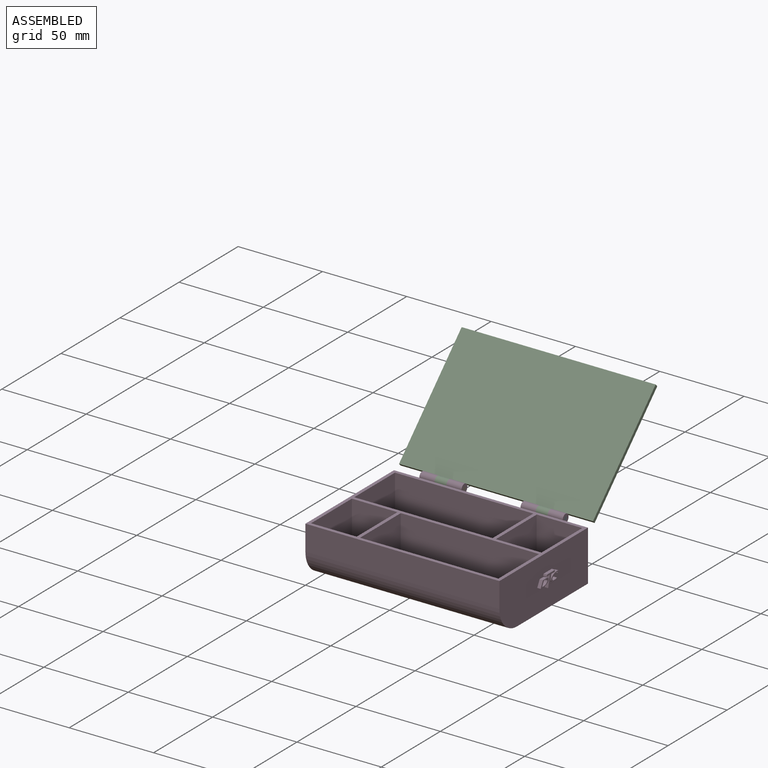
[diagram: assembled view]
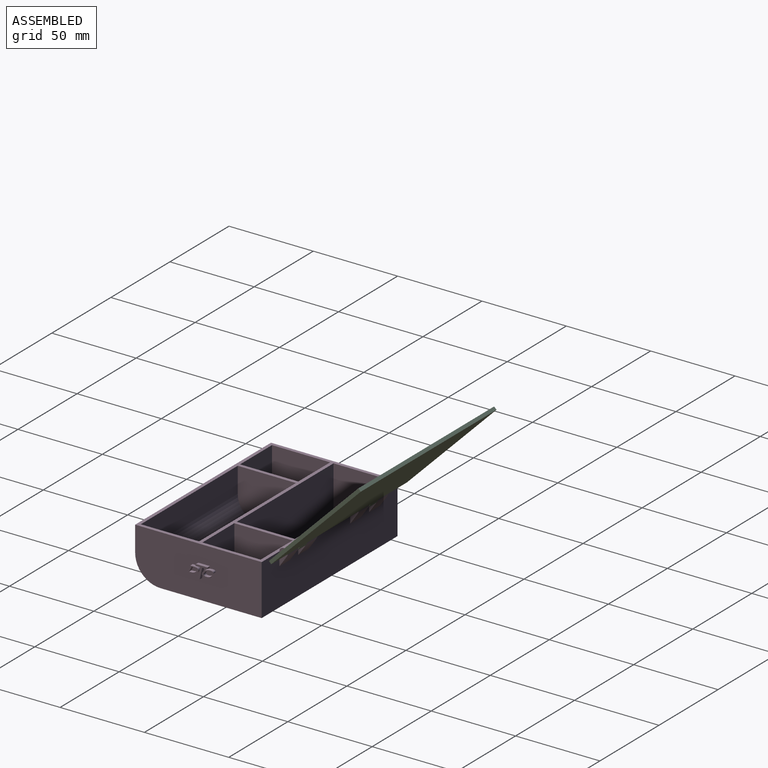
[diagram: assembled view, second angle]
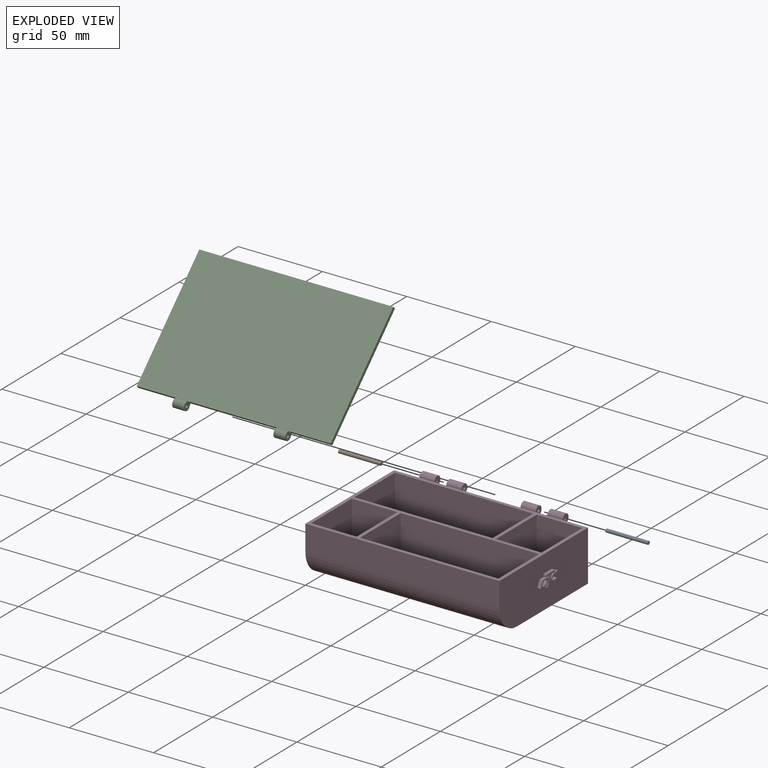
[diagram: exploded view]
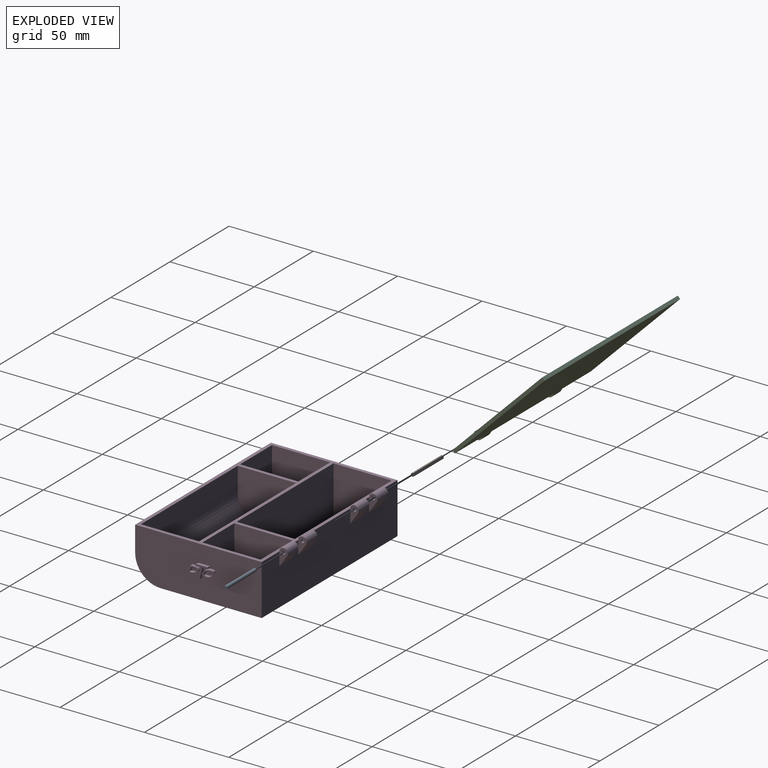
[diagram: exploded view, second angle]
ASSEMBLY  parts=4 mates=3
PART A: 3 faces, bbox 25x2x2 mm
  f0: cylinder r=1mm len=25mm, axis (-1,0,0), area 157.1mm2, adj f1,f2
  f1: plane 2x2mm, normal (1,0,0), area 3.1mm2, adj f0
  f2: plane 2x2mm, normal (-1,0,0), area 3.1mm2, adj f0
PART B: same geometry as A
PART C: 18 faces, bbox 115x80x5 mm
  f0: plane 24x2mm, normal (0,1,0), area 48mm2, adj f3,f6,f7,f17
  f1: plane 53x2mm, normal (0,1,0), area 106mm2, adj f6,f7,f11,f16
  f2: plane 24x2mm, normal (0,1,0), area 48mm2, adj f5,f6,f7,f12
  f3: plane 75x2mm, normal (-1,0,0), area 150mm2, adj f0,f4,f6,f7
  f4: plane 115x2mm, normal (0,-1,0), area 230mm2, adj f3,f5,f6,f7
  f5: plane 75x2mm, normal (1,0,0), area 150mm2, adj f2,f4,f6,f7
  f6: plane 115x75mm, normal (0,0,1), area 8625mm2, adj f0,f1,f2,f3,f4,f5,f10,f13
  f7: plane 115x75mm, normal (0,0,-1), area 8625mm2, adj f0,f1,f2,f3,f4,f5,f8,f15
  f8: cylinder r=2.5mm len=7mm, axis (1,0,0), area 86.3mm2, adj f7,f10,f11,f12
  f9: cylinder r=1mm len=7mm, axis (1,0,0), area 44mm2, adj f11,f12
  f10: plane 7x1.95mm, normal (0,-0.22,0.98), area 14mm2, adj f6,f8,f11,f12
  f11: plane 5x5mm, normal (-1,0,0), area 17.3mm2, adj f1,f8,f9,f10
  f12: plane 5x5mm, normal (1,0,0), area 17.3mm2, adj f2,f8,f9,f10
  f13: plane 7x1.95mm, normal (0,-0.22,0.98), area 14mm2, adj f6,f15,f16,f17
  f14: cylinder r=1mm len=7mm, axis (-1,0,0), area 44mm2, adj f16,f17
  f15: cylinder r=2.5mm len=7mm, axis (-1,0,0), area 86.3mm2, adj f7,f13,f16,f17
  f16: plane 5x5mm, normal (1,0,0), area 17.3mm2, adj f1,f13,f14,f15
  f17: plane 5x5mm, normal (-1,0,0), area 17.3mm2, adj f0,f13,f14,f15
PART D: 122 faces, bbox 117x80x32.5 mm
  f0: plane 2x1.26mm, normal (0,0,-1), area 2.5mm2, adj f1,f7,f8,f101
  f1: plane 6.57x2mm, normal (0,0.98,-0.22), area 13.5mm2, adj f0,f2,f8,f101
  f2: plane 2.82x2mm, normal (0,0,-1), area 5.6mm2, adj f1,f3,f8,f101
  f3: plane 2x1.03mm, normal (0,0.94,-0.35), area 2.2mm2, adj f2,f4,f8,f101
  f4: plane 6.9x2mm, normal (0,0,1), area 13.8mm2, adj f3,f5,f8,f101
  f5: plane 2x1.03mm, normal (0,-0.95,0.3), area 2.2mm2, adj f4,f6,f8,f101
  f6: plane 2.76x2mm, normal (0,0,-1), area 5.5mm2, adj f5,f7,f8,f101
  f7: plane 6.57x2mm, normal (0,-0.98,0.22), area 13.5mm2, adj f0,f6,f8,f101
  f8: plane 7.6x7.22mm, normal (1,0,0), area 15.4mm2, adj f0,f1,f2,f3,f4,f5,f6,f7
  f9: plane 2x1.81mm, normal (0,0,1), area 3.6mm2, adj f10,f38,f39,f101
  f10: plane 3.92x2.03mm, normal (0,-0.89,0.46), area 8.8mm2, adj f9,f11,f39,f101
  f11: plane 2x1.81mm, normal (0,0,-1), area 3.6mm2, adj f10,f12,f39,f101
  f12: extruded ~2x0.75mm, area 1.5mm2, adj f11,f13,f39,f101
  f13: extruded ~2x0.75mm, area 1.5mm2, adj f12,f14,f39,f101
  f14: extruded ~2x1.04mm, area 2.1mm2, adj f13,f15,f39,f101
  f15: extruded ~2x0.96mm, area 2.1mm2, adj f14,f16,f39,f101
  f16: extruded ~2x0.82mm, area 2mm2, adj f15,f17,f39,f101
  f17: extruded ~2x0.74mm, area 1.9mm2, adj f16,f18,f39,f101
  f18: extruded ~2x0.74mm, area 1.5mm2, adj f17,f19,f39,f101
  f19: extruded ~2x0.55mm, area 1.2mm2, adj f18,f20,f39,f101
  f20: extruded ~2x0.55mm, area 1.4mm2, adj f19,f21,f39,f101
  f21: extruded ~2x0.82mm, area 1.7mm2, adj f20,f22,f39,f101
  f22: extruded ~2x0.7mm, area 1.4mm2, adj f21,f38,f39,f101
  f23: extruded ~2x0.56mm, area 1.1mm2, adj f24,f37,f39,f121
  f24: extruded ~2x0.52mm, area 1mm2, adj f23,f25,f39,f121
  f25: extruded ~2x0.49mm, area 1mm2, adj f24,f26,f39,f121
  f26: extruded ~2x0.41mm, area 1mm2, adj f25,f27,f39,f121
  f27: extruded ~2x0.43mm, area 0.9mm2, adj f26,f28,f39,f121
  f28: extruded ~2x0.62mm, area 1.3mm2, adj f27,f29,f39,f121
  f29: extruded ~2x0.62mm, area 1.6mm2, adj f28,f30,f39,f121
  f30: extruded ~2x0.63mm, area 1.5mm2, adj f29,f31,f39,f121
  f31: extruded ~2x0.71mm, area 1.5mm2, adj f30,f32,f39,f121
  f32: extruded ~2x0.63mm, area 1.3mm2, adj f31,f33,f39,f121
  f33: extruded ~2x0.55mm, area 1.1mm2, adj f32,f34,f39,f121
  f34: extruded ~2x0.57mm, area 1.1mm2, adj f33,f35,f39,f121
  f35: plane 2x0.77mm, normal (0,0,1), area 1.5mm2, adj f34,f36,f39,f121
  f36: plane 3.03x2mm, normal (0,0.89,-0.46), area 6.8mm2, adj f35,f37,f39,f121
  f37: plane 2x0.77mm, normal (0,0,-1), area 1.5mm2, adj f23,f36,f39,f121
  f38: extruded ~2x0.73mm, area 1.5mm2, adj f9,f22,f39,f101
  f39: plane 6.91x3.92mm, normal (1,0,0), area 10.3mm2, adj f9,f10,f11,f12,f13,f14,f15,f16
  f40: plane 6.89x4.44mm, normal (1,0,0), area 8.3mm2, adj f41,f42,f43,f44,f45,f46,f47,f48
  f41: extruded ~2x0.69mm, area 1.9mm2, adj f40,f42,f71,f101
  f42: extruded ~2x0.54mm, area 1.2mm2, adj f40,f41,f43,f101
  f43: extruded ~2x0.61mm, area 1.2mm2, adj f40,f42,f44,f101
  f44: extruded ~2x0.47mm, area 1.3mm2, adj f40,f43,f45,f101
  f45: extruded ~2x1.11mm, area 2.3mm2, adj f40,f44,f46,f101
  f46: extruded ~2x1.09mm, area 2.2mm2, adj f40,f45,f47,f101
  f47: extruded ~2x1.16mm, area 2.4mm2, adj f40,f46,f48,f101
  f48: plane 2x0.59mm, normal (0,0.84,-0.54), area 1.4mm2, adj f40,f47,f49,f101
  f49: extruded ~2x0.37mm, area 0.8mm2, adj f40,f48,f50,f101
  f50: extruded ~2x0.48mm, area 1mm2, adj f40,f49,f51,f101
  f51: extruded ~2x1.53mm, area 3.1mm2, adj f40,f50,f52,f101
  f52: extruded ~2x1.36mm, area 2.8mm2, adj f40,f51,f53,f101
  f53: extruded ~2x0.69mm, area 1.8mm2, adj f40,f52,f54,f101
  f54: extruded ~2x0.73mm, area 1.5mm2, adj f40,f53,f55,f101
  f55: extruded ~2x0.82mm, area 1.8mm2, adj f40,f54,f56,f101
  f56: extruded ~2x0.81mm, area 2.2mm2, adj f40,f55,f57,f101
  f57: extruded ~2x1.03mm, area 2.5mm2, adj f40,f56,f58,f101
  f58: extruded ~2x1.33mm, area 2.8mm2, adj f40,f57,f59,f101
  f59: extruded ~2x1.58mm, area 3.2mm2, adj f40,f58,f60,f101
  f60: extruded ~2x0.89mm, area 1.8mm2, adj f40,f59,f61,f101
  f61: extruded ~2x0.62mm, area 1.4mm2, adj f40,f60,f62,f101
  f62: extruded ~2x0.4mm, area 1mm2, adj f40,f61,f63,f101
  f63: extruded ~2x0.56mm, area 1.2mm2, adj f40,f62,f64,f101
  f64: plane 2x1.06mm, normal (0,0,-1), area 2.1mm2, adj f40,f63,f65,f101
  f65: extruded ~2x0.39mm, area 0.8mm2, adj f40,f64,f66,f101
  f66: extruded ~2x0.25mm, area 0.6mm2, adj f40,f65,f67,f101
  f67: extruded ~2x0.38mm, area 0.8mm2, adj f40,f66,f68,f101
  f68: extruded ~2x0.47mm, area 0.9mm2, adj f40,f67,f69,f101
  f69: extruded ~2x0.9mm, area 1.8mm2, adj f40,f68,f70,f101
  f70: extruded ~2x0.93mm, area 2mm2, adj f40,f69,f71,f101
  f71: extruded ~2x0.86mm, area 2.1mm2, adj f40,f41,f70,f101
  f72: plane 10.5x5mm, normal (1,0,0), area 28.6mm2, adj f117,f118,f119,f120
  f73: plane 10.5x5mm, normal (-1,0,0), area 28.6mm2, adj f76,f77,f78,f117
  f74: plane 10.5x5mm, normal (-1,0,0), area 28.6mm2, adj f117,f118,f119,f120
  f75: plane 10.5x5mm, normal (1,0,0), area 28.6mm2, adj f76,f77,f78,f117
  f76: plane 9x6.58mm, normal (0,0.82,-0.57), area 72mm2, adj f73,f75,f78,f117
  f77: cylinder r=1mm len=9mm, axis (-1,0,0), area 56.5mm2, adj f73,f75
  f78: cylinder r=2.5mm len=9mm, axis (-1,0,0), area 84.3mm2, adj f73,f75,f76,f105
  f79: plane 10.5x5mm, normal (-1,0,0), area 28.6mm2, adj f83,f84,f85,f117
  f80: plane 10.5x5mm, normal (1,0,0), area 28.6mm2, adj f114,f115,f116,f117
  f81: plane 10.5x5mm, normal (1,0,0), area 28.6mm2, adj f83,f84,f85,f117
  f82: plane 10.5x5mm, normal (-1,0,0), area 28.6mm2, adj f114,f115,f116,f117
  f83: cylinder r=2.5mm len=9mm, axis (1,0,0), area 84.3mm2, adj f79,f81,f85,f105
  f84: cylinder r=1mm len=9mm, axis (1,0,0), area 56.5mm2, adj f79,f81
  f85: plane 9x6.58mm, normal (0,0.82,-0.57), area 72mm2, adj f79,f81,f83,f117
  f86: plane 34.5x28mm, normal (1,0,0), area 966mm2, adj f90,f96,f99,f105
  f87: plane 34.5x28mm, normal (-1,0,0), area 966mm2, adj f89,f105,f110,f112
  f88: plane 82x28mm, normal (0,-1,0), area 2296mm2, adj f93,f95,f105,f113
  f89: plane 82x28mm, normal (0,1,0), area 2296mm2, adj f87,f105,f106,f112
  f90: plane 28x27mm, normal (0,1,0), area 756mm2, adj f86,f96,f105,f107
  f91: plane 28x27mm, normal (0,-1,0), area 756mm2, adj f92,f94,f105,f111
  f92: plane 34.5x28mm, normal (-1,0,0), area 929.7mm2, adj f91,f97,f98,f105,f111
  f93: plane 34.5x28mm, normal (1,0,0), area 929.7mm2, adj f88,f105,f108,f109,f113
  f94: plane 34.5x28mm, normal (1,0,0), area 929.7mm2, adj f91,f97,f98,f105,f111
  f95: plane 34.5x28mm, normal (-1,0,0), area 929.7mm2, adj f88,f105,f108,f109,f113
  f96: plane 34.5x27mm, normal (0,0,1), area 931.5mm2, adj f86,f90,f99,f107
  f97: cylinder r=13mm len=27mm, axis (-1,0,0), area 551.3mm2, adj f92,f94,f98,f111
  f98: plane 27x15mm, normal (0,1,0), area 405mm2, adj f92,f94,f97,f105
  f99: plane 28x27mm, normal (0,-1,0), area 756mm2, adj f86,f96,f105,f107
  f100: plane 75x30mm, normal (-1,0,0), area 2201.7mm2, adj f102,f103,f104,f105,f117
  f101: plane 75x30mm, normal (1,0,0), area 2158.4mm2, adj f0,f1,f2,f3,f4,f5,f6,f7
  f102: plane 115x60mm, normal (0,0,-1), area 6900mm2, adj f100,f101,f103,f117
  f103: cylinder r=15mm len=115mm, axis (-1,0,0), area 2709.6mm2, adj f100,f101,f102,f104
  f104: plane 115x15mm, normal (0,-1,0), area 1725mm2, adj f100,f101,f103,f105
  f105: plane 115x75mm, normal (0,0,1), area 1104mm2, adj f78,f83,f86,f87,f88,f89,f90,f91
  f106: plane 34.5x28mm, normal (1,0,0), area 966mm2, adj f89,f105,f110,f112
  f107: plane 34.5x28mm, normal (-1,0,0), area 966mm2, adj f90,f96,f99,f105
  f108: cylinder r=13mm len=82mm, axis (-1,0,0), area 1674.5mm2, adj f93,f95,f109,f113
  f109: plane 82x15mm, normal (0,1,0), area 1230mm2, adj f93,f95,f105,f108
  f110: plane 82x28mm, normal (0,-1,0), area 2296mm2, adj f87,f105,f106,f112
  f111: plane 27x21.5mm, normal (0,0,1), area 580.5mm2, adj f91,f92,f94,f97
  f112: plane 82x34.5mm, normal (0,0,1), area 2829mm2, adj f87,f89,f106,f110
  f113: plane 82x21.5mm, normal (0,0,1), area 1763mm2, adj f88,f93,f95,f108
  f114: cylinder r=2.5mm len=9mm, axis (1,0,0), area 84.3mm2, adj f80,f82,f105,f116
  f115: cylinder r=1mm len=9mm, axis (1,0,0), area 56.5mm2, adj f80,f82
  f116: plane 9x6.58mm, normal (0,0.82,-0.57), area 72mm2, adj f80,f82,f114,f117
  f117: plane 115x30mm, normal (0,1,0), area 3162mm2, adj f72,f73,f74,f75,f76,f79,f80,f81
  f118: plane 9x6.58mm, normal (0,0.82,-0.57), area 72mm2, adj f72,f74,f117,f120
  f119: cylinder r=1mm len=9mm, axis (-1,0,0), area 56.5mm2, adj f72,f74
  f120: cylinder r=2.5mm len=9mm, axis (-1,0,0), area 84.3mm2, adj f72,f74,f105,f118
  f121: plane 4.52x3.03mm, normal (1,0,0), area 9.4mm2, adj f23,f24,f25,f26,f27,f28,f29,f30
PLACE A t=(75,77.5,0)mm
PLACE B t=(15,77.5,0)mm
PLACE C rot(axis=(-1,0,0),135deg) t=(0,79.27,1.77)mm
PLACE D at identity fixed
MATE fastened B.f0 <-> D.f77  axis (1,0,0) through (40,77.5,0)mm
MATE fastened A.f0 <-> D.f77  axis (1,0,0) through (100,77.5,0)mm
MATE revolute C.f9 <-> D.f78  axis (1,0,0) through (91,77.5,0)mm
